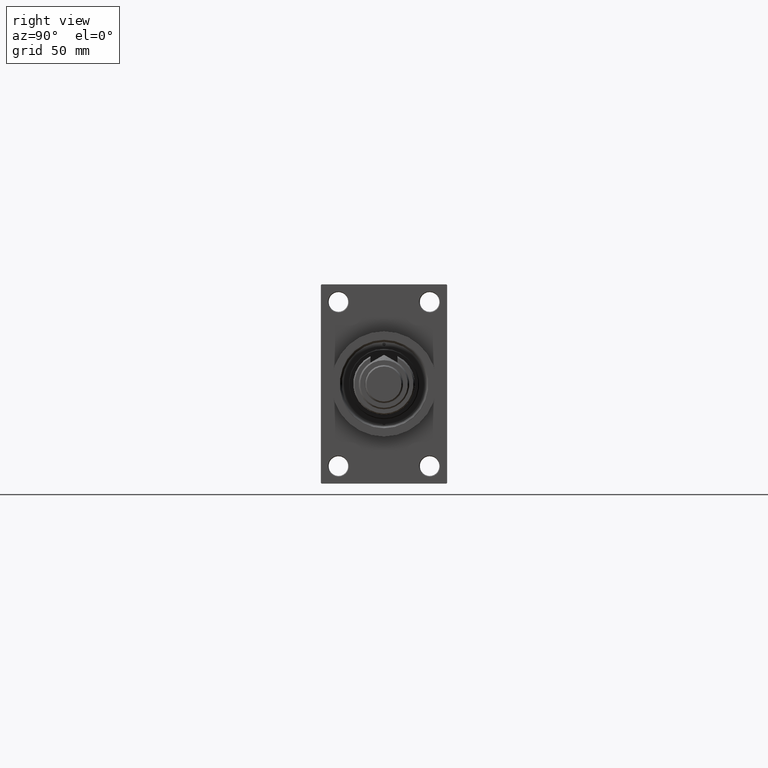
[diagram: clean part render]
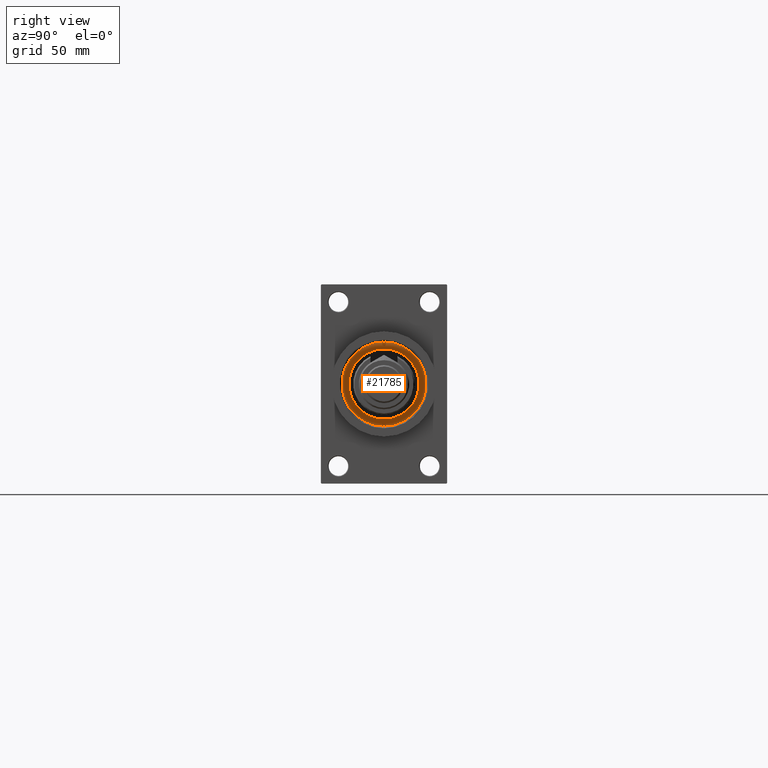
[diagram: same view with one face highlighted and labeled with its STEP entity id]
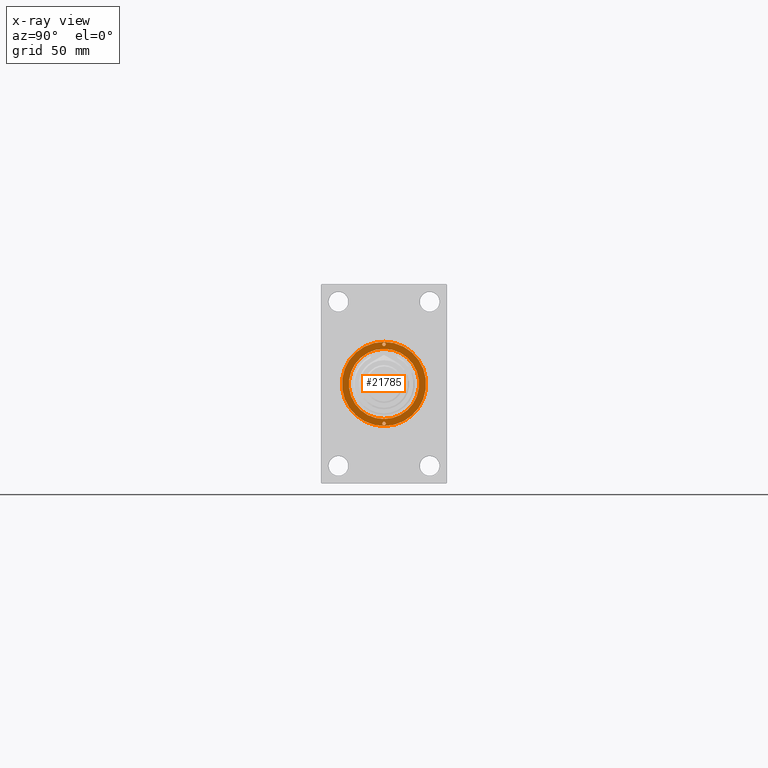
[diagram: x-ray of the same camera — body ghosted, the highlighted face saturated]
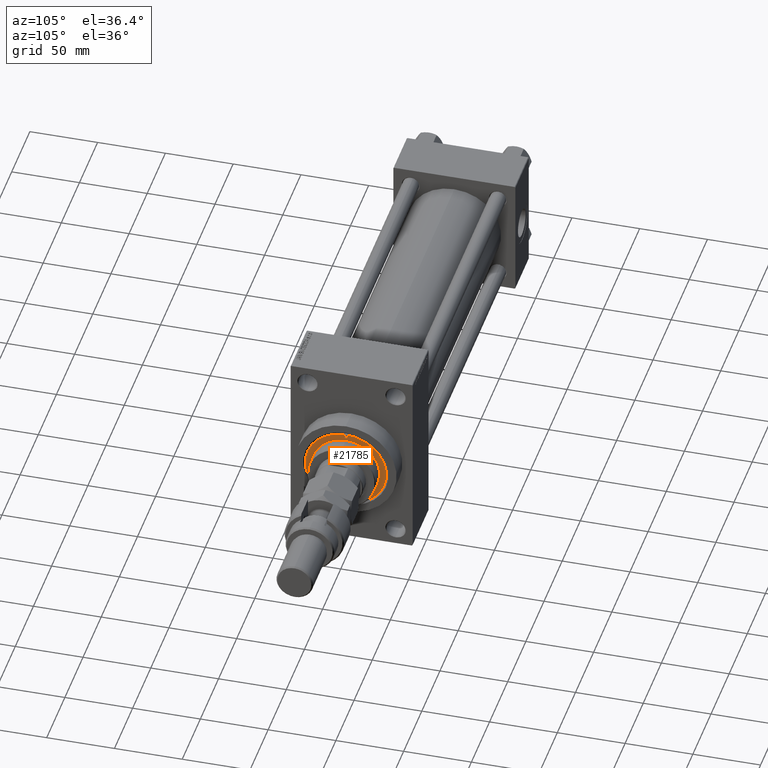
[diagram: same view with one face highlighted and labeled with its STEP entity id]
A machine part, right view. The second image highlights one B-rep face of the part: STEP entity #21785.
The next image is the same camera in x-ray: the body ghosted, the highlighted face saturated — about 0% of this face is hidden behind the body in this view.
A second angle (auxiliary view) of the same face is appended — the face is thin or edge-on in the first view.
In plain terms, the highlighted planar face has unit normal (1, -0, -0).
Its self-contained STEP definition (entity closure, byte-faithful):
#901 = EDGE_CURVE ( 'NONE', #2659, #2002, #38612, .T. ) ;
#1426 = PLANE ( 'NONE',  #26441 ) ;
#1447 = AXIS2_PLACEMENT_3D ( 'NONE', #6313, #11292, #4171 ) ;
#1487 = DIRECTION ( 'NONE',  ( 0.000000000000000000, 0.000000000000000000, 1.000000000000000000 ) ) ;
#2002 = VERTEX_POINT ( 'NONE', #9353 ) ;
#2456 = DIRECTION ( 'NONE',  ( -0.000000000000000000, -0.000000000000000000, 1.000000000000000000 ) ) ;
#2659 = VERTEX_POINT ( 'NONE', #49159 ) ;
#2667 = EDGE_CURVE ( 'NONE', #3676, #36729, #27322, .T. ) ;
#3676 = VERTEX_POINT ( 'NONE', #8932 ) ;
#3731 = CIRCLE ( 'NONE', #28073, 25.00000000000000000 ) ;
#4171 = DIRECTION ( 'NONE',  ( 1.000000000000000000, 0.000000000000000000, 0.000000000000000000 ) ) ;
#5033 = DIRECTION ( 'NONE',  ( 1.000000000000000000, 0.000000000000000000, 0.000000000000000000 ) ) ;
#5317 = AXIS2_PLACEMENT_3D ( 'NONE', #16504, #28212, #9112 ) ;
#5401 = AXIS2_PLACEMENT_3D ( 'NONE', #45333, #41516, #37699 ) ;
#6313 = CARTESIAN_POINT ( 'NONE',  ( 28.25000000000000000, 0.000000000000000000, 43.25999999999999801 ) ) ;
#7538 = CARTESIAN_POINT ( 'NONE',  ( 27.00000000000000355, 1.530808498934188612E-16, 43.25999999999999801 ) ) ;
#7583 = ORIENTED_EDGE ( 'NONE', *, *, #43678, .F. ) ;
#8932 = CARTESIAN_POINT ( 'NONE',  ( 25.00000000000000000, 3.061616997868383043E-15, 43.25999999999999801 ) ) ;
#9112 = DIRECTION ( 'NONE',  ( 1.000000000000000000, 0.000000000000000000, 0.000000000000000000 ) ) ;
#9287 = FACE_OUTER_BOUND ( 'NONE', #20465, .T. ) ;
#9353 = CARTESIAN_POINT ( 'NONE',  ( -30.00000000000000000, 0.000000000000000000, 43.25999999999999801 ) ) ;
#11292 = DIRECTION ( 'NONE',  ( -0.000000000000000000, -0.000000000000000000, 1.000000000000000000 ) ) ;
#12180 = AXIS2_PLACEMENT_3D ( 'NONE', #47263, #40123, #5033 ) ;
#12322 = DIRECTION ( 'NONE',  ( 1.000000000000000000, 0.000000000000000000, 0.000000000000000000 ) ) ;
#12566 = CARTESIAN_POINT ( 'NONE',  ( 0.000000000000000000, 0.000000000000000000, 43.25999999999999801 ) ) ;
#12591 = DIRECTION ( 'NONE',  ( 0.000000000000000000, 0.000000000000000000, 1.000000000000000000 ) ) ;
#12850 = DIRECTION ( 'NONE',  ( 1.000000000000000000, 0.000000000000000000, -0.000000000000000000 ) ) ;
#13642 = EDGE_LOOP ( 'NONE', ( #7583, #43188 ) ) ;
#14182 = DIRECTION ( 'NONE',  ( 1.000000000000000000, 0.000000000000000000, 0.000000000000000000 ) ) ;
#15184 = CARTESIAN_POINT ( 'NONE',  ( -27.00000000000000355, 0.000000000000000000, 43.25999999999999801 ) ) ;
#15660 = CARTESIAN_POINT ( 'NONE',  ( 29.50000000000000000, 0.000000000000000000, 43.25999999999999801 ) ) ;
#16504 = CARTESIAN_POINT ( 'NONE',  ( -28.25000000000000000, 0.000000000000000000, 43.25999999999999801 ) ) ;
#17186 = FACE_BOUND ( 'NONE', #36116, .T. ) ;
#17246 = CIRCLE ( 'NONE', #45658, 30.00000000000000000 ) ;
#17734 = ORIENTED_EDGE ( 'NONE', *, *, #2667, .F. ) ;
#18033 = DIRECTION ( 'NONE',  ( 0.000000000000000000, 0.000000000000000000, 1.000000000000000000 ) ) ;
#18273 = EDGE_CURVE ( 'NONE', #36729, #3676, #3731, .T. ) ;
#20306 = CARTESIAN_POINT ( 'NONE',  ( 0.000000000000000000, 0.000000000000000000, 43.25999999999999801 ) ) ;
#20410 = CARTESIAN_POINT ( 'NONE',  ( -25.00000000000000000, 0.000000000000000000, 43.25999999999999801 ) ) ;
#20465 = EDGE_LOOP ( 'NONE', ( #32019, #47564 ) ) ;
#21003 = FACE_BOUND ( 'NONE', #21744, .T. ) ;
#21654 = EDGE_CURVE ( 'NONE', #22561, #45061, #48383, .T. ) ;
#21744 = EDGE_LOOP ( 'NONE', ( #35181, #43281 ) ) ;
#21785 = ADVANCED_FACE ( 'NONE', ( #21003, #44133, #17186, #9287 ), #1426, .T. ) ;
#22561 = VERTEX_POINT ( 'NONE', #15184 ) ;
#23559 = CIRCLE ( 'NONE', #12180, 1.249999999999997558 ) ;
#25598 = CARTESIAN_POINT ( 'NONE',  ( 28.25000000000000000, 0.000000000000000000, 43.25999999999999801 ) ) ;
#26441 = AXIS2_PLACEMENT_3D ( 'NONE', #47466, #12591, #12850 ) ;
#27322 = CIRCLE ( 'NONE', #5401, 25.00000000000000000 ) ;
#28073 = AXIS2_PLACEMENT_3D ( 'NONE', #33267, #18033, #14182 ) ;
#28188 = EDGE_CURVE ( 'NONE', #45061, #22561, #23559, .T. ) ;
#28212 = DIRECTION ( 'NONE',  ( -0.000000000000000000, -0.000000000000000000, 1.000000000000000000 ) ) ;
#28405 = VERTEX_POINT ( 'NONE', #15660 ) ;
#30650 = EDGE_CURVE ( 'NONE', #38223, #28405, #38430, .T. ) ;
#31722 = EDGE_CURVE ( 'NONE', #2002, #2659, #17246, .T. ) ;
#32019 = ORIENTED_EDGE ( 'NONE', *, *, #31722, .T. ) ;
#32086 = AXIS2_PLACEMENT_3D ( 'NONE', #20306, #1487, #47524 ) ;
#32271 = CIRCLE ( 'NONE', #1447, 1.249999999999997558 ) ;
#33267 = CARTESIAN_POINT ( 'NONE',  ( 0.000000000000000000, 0.000000000000000000, 43.25999999999999801 ) ) ;
#33429 = CARTESIAN_POINT ( 'NONE',  ( -29.50000000000000000, 1.530808498934188612E-16, 43.25999999999999801 ) ) ;
#35181 = ORIENTED_EDGE ( 'NONE', *, *, #21654, .F. ) ;
#36116 = EDGE_LOOP ( 'NONE', ( #38774, #17734 ) ) ;
#36729 = VERTEX_POINT ( 'NONE', #20410 ) ;
#37699 = DIRECTION ( 'NONE',  ( 1.000000000000000000, 0.000000000000000000, 0.000000000000000000 ) ) ;
#38223 = VERTEX_POINT ( 'NONE', #7538 ) ;
#38430 = CIRCLE ( 'NONE', #48181, 1.249999999999997558 ) ;
#38612 = CIRCLE ( 'NONE', #32086, 30.00000000000000000 ) ;
#38774 = ORIENTED_EDGE ( 'NONE', *, *, #18273, .F. ) ;
#39038 = DIRECTION ( 'NONE',  ( 0.000000000000000000, 0.000000000000000000, 1.000000000000000000 ) ) ;
#40123 = DIRECTION ( 'NONE',  ( -0.000000000000000000, -0.000000000000000000, 1.000000000000000000 ) ) ;
#41516 = DIRECTION ( 'NONE',  ( 0.000000000000000000, 0.000000000000000000, 1.000000000000000000 ) ) ;
#43188 = ORIENTED_EDGE ( 'NONE', *, *, #30650, .F. ) ;
#43281 = ORIENTED_EDGE ( 'NONE', *, *, #28188, .F. ) ;
#43678 = EDGE_CURVE ( 'NONE', #28405, #38223, #32271, .T. ) ;
#44133 = FACE_BOUND ( 'NONE', #13642, .T. ) ;
#45061 = VERTEX_POINT ( 'NONE', #33429 ) ;
#45333 = CARTESIAN_POINT ( 'NONE',  ( 0.000000000000000000, 0.000000000000000000, 43.25999999999999801 ) ) ;
#45658 = AXIS2_PLACEMENT_3D ( 'NONE', #12566, #39038, #12322 ) ;
#47263 = CARTESIAN_POINT ( 'NONE',  ( -28.25000000000000000, 0.000000000000000000, 43.25999999999999801 ) ) ;
#47466 = CARTESIAN_POINT ( 'NONE',  ( 0.000000000000000000, 0.000000000000000000, 43.25999999999999801 ) ) ;
#47524 = DIRECTION ( 'NONE',  ( 1.000000000000000000, 0.000000000000000000, 0.000000000000000000 ) ) ;
#47564 = ORIENTED_EDGE ( 'NONE', *, *, #901, .T. ) ;
#48181 = AXIS2_PLACEMENT_3D ( 'NONE', #25598, #2456, #48990 ) ;
#48383 = CIRCLE ( 'NONE', #5317, 1.249999999999997558 ) ;
#48990 = DIRECTION ( 'NONE',  ( 1.000000000000000000, 0.000000000000000000, 0.000000000000000000 ) ) ;
#49159 = CARTESIAN_POINT ( 'NONE',  ( 30.00000000000000000, 3.673940397442059178E-15, 43.25999999999999801 ) ) ;